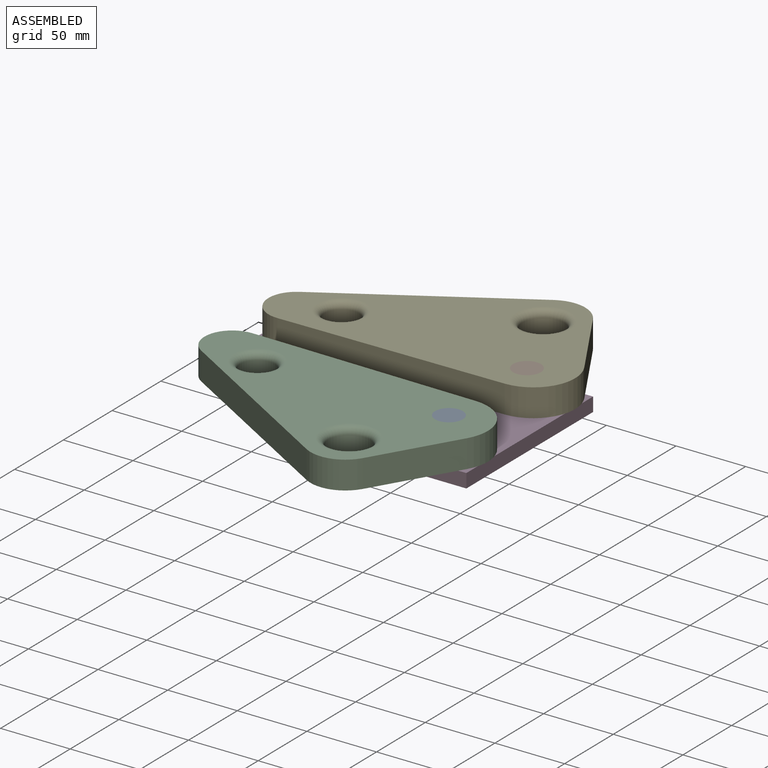
[diagram: assembled view]
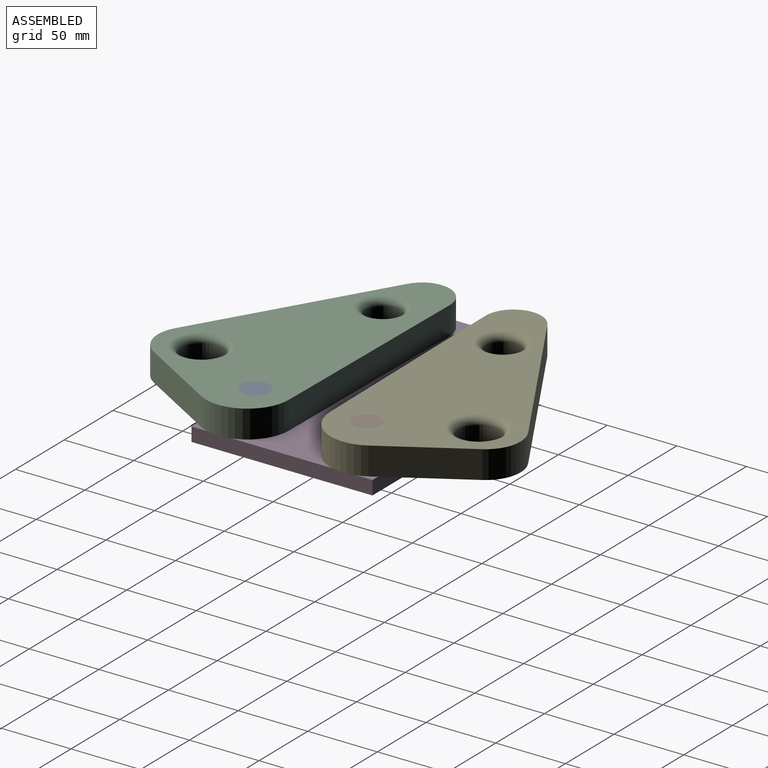
[diagram: assembled view, second angle]
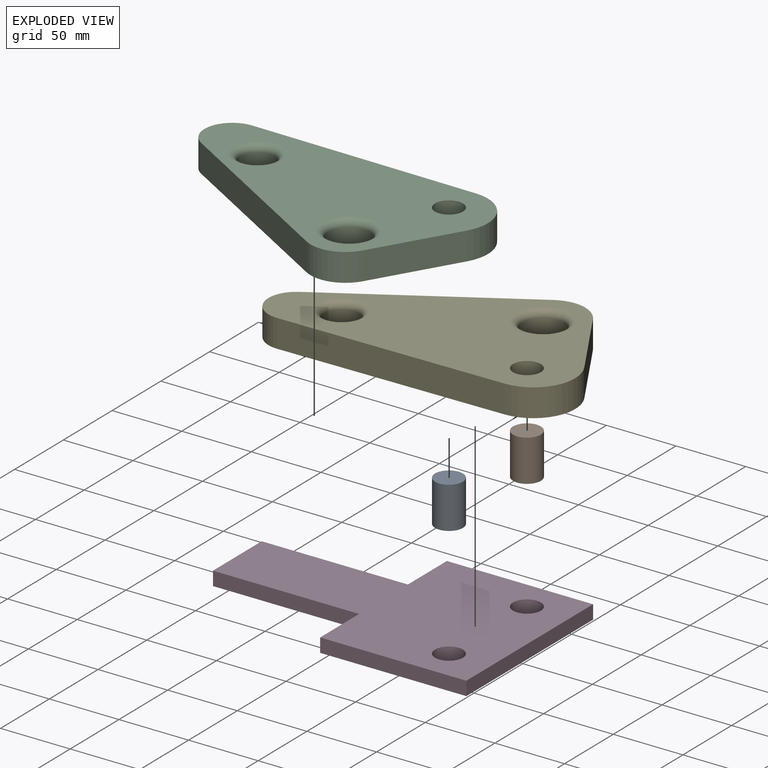
[diagram: exploded view]
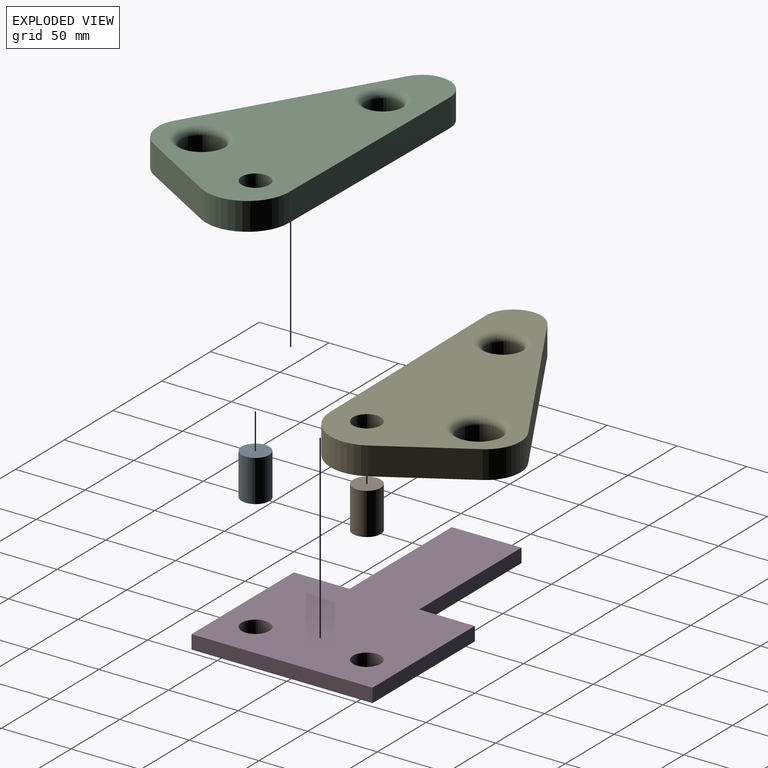
[diagram: exploded view, second angle]
ASSEMBLY  parts=5 mates=4
PART A: 3 faces, bbox 20x20x30 mm
  f0: cylinder r=10mm len=30mm, axis (0,0,-1), area 1885mm2, adj f1,f2
  f1: plane 20x20mm, normal (0,0,1), area 314.2mm2, adj f0
  f2: plane 20x20mm, normal (0,0,-1), area 314.2mm2, adj f0
PART B: same geometry as A
PART C: 15 faces, bbox 211.9x117.4x20 mm
  f0: plane 57.93x34.38mm, normal (0.86,0.51,0), area 1347.3mm2, adj f1,f7,f9,f10
  f1: cylinder r=25mm len=34.26mm, axis (0,0,-1), area 785.4mm2, adj f0,f2,f9,f10
  f2: plane 129.29x76.72mm, normal (-0.51,0.86,0), area 3006.8mm2, adj f1,f3,f9,f10
  f3: cylinder r=20mm len=37.2mm, axis (0,0,-1), area 1047.2mm2, adj f2,f4,f9,f10
  f4: plane 162.04x20mm, normal (0.01,-1,0), area 3241mm2, adj f3,f7,f9,f10
  f5: cylinder r=12.5mm len=25mm, axis (0,0,-1), area 785.4mm2, adj f11,f13
  f6: cylinder r=15mm len=30mm, axis (0,0,-1), area 942.5mm2, adj f12,f14
  f7: cylinder r=30mm len=45.31mm, axis (0,0,-1), area 1256.6mm2, adj f0,f4,f9,f10
  f8: cylinder r=10mm len=20mm, axis (0,0,-1), area 1256.6mm2, adj f9,f10
  f9: plane 211.92x117.42mm, normal (0,0,1), area 13787mm2, adj f0,f1,f2,f3,f4,f7,f8,f13
  f10: plane 211.92x117.42mm, normal (0,0,-1), area 13787mm2, adj f0,f1,f2,f3,f4,f7,f8,f11
  f11: torus R=17.5mm, axis (0,0,1), area 706.5mm2, adj f5,f10
  f12: torus R=20mm, axis (0,0,1), area 829.9mm2, adj f6,f10
  f13: torus R=17.5mm, axis (0,0,1), area 706.5mm2, adj f5,f9
  f14: torus R=20mm, axis (0,0,1), area 829.9mm2, adj f6,f9
PART D: 12 faces, bbox 210x130x10 mm
  f0: plane 130x10mm, normal (1,0,0), area 1300mm2, adj f1,f9,f10,f11
  f1: plane 105x10mm, normal (0,1,0), area 1050mm2, adj f0,f2,f10,f11
  f2: plane 40x10mm, normal (-1,0,0), area 400mm2, adj f1,f3,f10,f11
  f3: plane 105x10mm, normal (0,1,0), area 1050mm2, adj f2,f4,f10,f11
  f4: plane 50x10mm, normal (-1,0,0), area 500mm2, adj f3,f5,f10,f11
  f5: plane 105x10mm, normal (0,-1,0), area 1050mm2, adj f4,f6,f10,f11
  f6: plane 40x10mm, normal (-1,0,0), area 400mm2, adj f5,f9,f10,f11
  f7: cylinder r=10mm len=20mm, axis (0,0,-1), area 628.3mm2, adj f10,f11
  f8: cylinder r=10mm len=20mm, axis (0,0,-1), area 628.3mm2, adj f10,f11
  f9: plane 105x10mm, normal (0,-1,0), area 1050mm2, adj f0,f6,f10,f11
  f10: plane 210x130mm, normal (0,0,1), area 18271.7mm2, adj f0,f1,f2,f3,f4,f5,f6,f7
  f11: plane 210x130mm, normal (0,0,-1), area 18271.7mm2, adj f0,f1,f2,f3,f4,f5,f6,f7
PART E: same geometry as C
PLACE A t=(75,-40,0)mm
PLACE B t=(75,40,0)mm
PLACE C rot(axis=(1,0,0),180deg) t=(95,-40,30)mm
PLACE D at identity fixed
PLACE E t=(95,40,10)mm
MATE revolute A.f0 <-> C.f8  axis (0,0,1) through (75,-40,30)mm
MATE fastened B.f0 <-> D.f7  axis (0,0,-1) through (75,40,0)mm
MATE fastened A.f0 <-> D.f8  axis (0,0,-1) through (75,-40,0)mm
MATE revolute E.f8 <-> B.f0  axis (0,0,-1) through (75,40,30)mm
